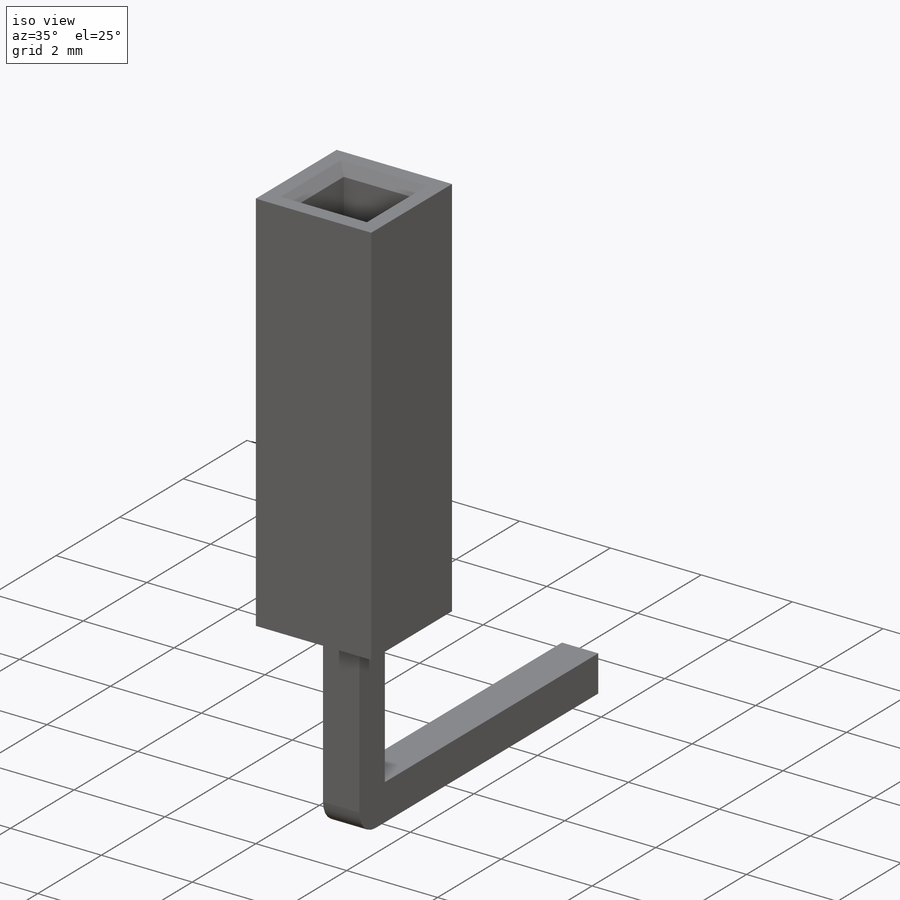
[diagram: iso view]
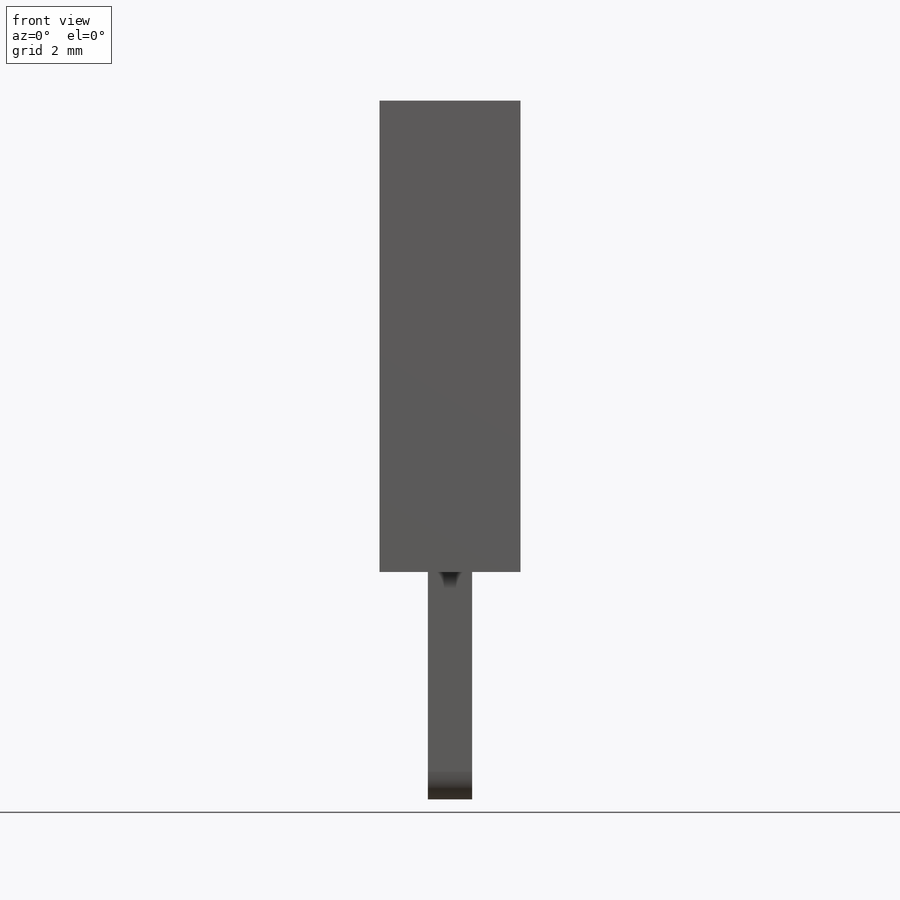
[diagram: front view]
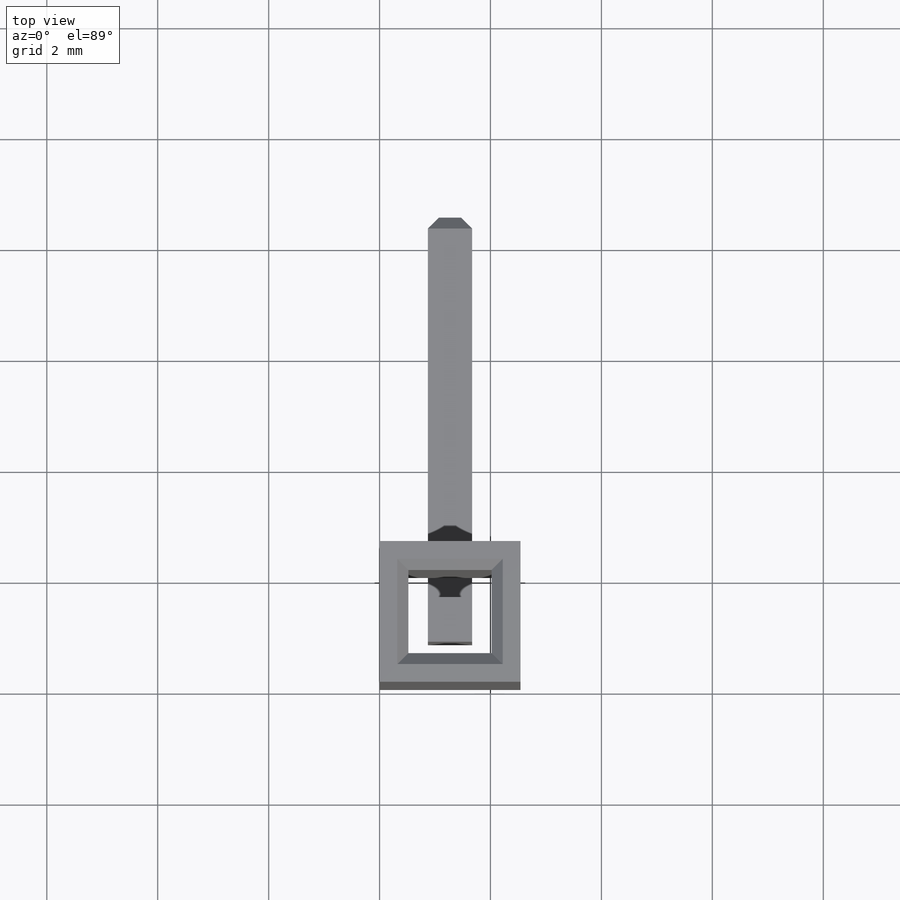
[diagram: top view]
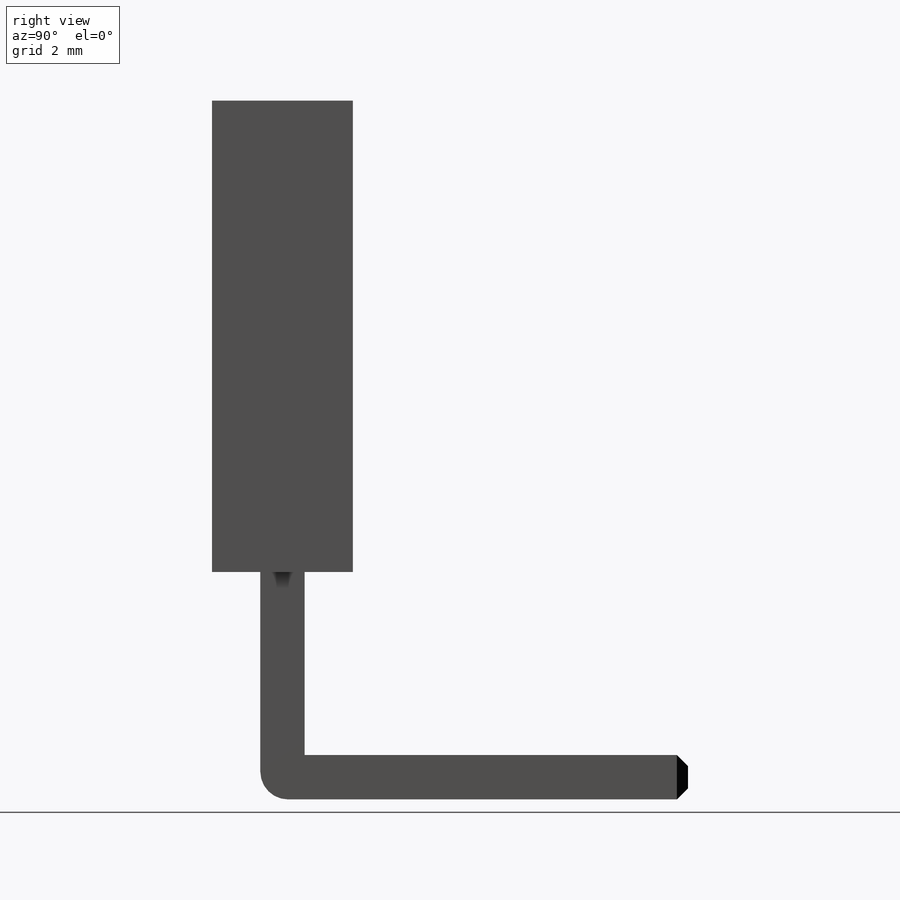
[diagram: right view]
SOLIDWORKS PART (.sldprt)
format: sldprt  version: not decoded by parser v0  size: 419,840 bytes
history: native  units: mm
features: sketch x5, plane x4, chamfer x3, sweep x2, fillet x2, material x1, extrude x1 (+8 scaffold rows collapsed)
feature tree (26):
  scaffold x8  (default folders/planes/origin — collapsed)
  material  "Материал <не указан>"
  plane  "Спереди"
  plane  "Сверху"
  plane  "Справа"
  sketch  "Эскиз1"  dims[D1=2.54mm D2=1.5mm]
  extrude  "Бобышка-Вытянуть1"  Depth=8.5mm
  sketch  "Эскиз2"  dims[D1=0.8mm]
  plane  "Плоскость1"
  sketch  "Эскиз3"  dims[c1.D1=2.54mm c2.D1=~0.920119deg c3.D1=9.66mm c3.D2=3.5mm]
  sweep  "По траектории1"
  sketch  "Эскиз4"  dims[D1=12.2mm D2=6.04mm]
  sweep  "По траектории2"
  sketch  "Эскиз2<2>"
  chamfer  "Фаска1"  Distance=0.2mm Angle=45deg
  chamfer  "Фаска2"  Distance=0.2mm Angle=45deg
  chamfer  "Фаска3"  Distance=0.2mm Angle=45deg
  fillet  "Скругление1"  Radius=0.5mm
  fillet  "Скругление2"  Radius=0.5mm
decode coverage: 10 of 13 modeling features carry decoded parameters
note: ~ marks probable driven/reference dimensions
note: suppression state not decoded; provenance and decode notes live in map.json
